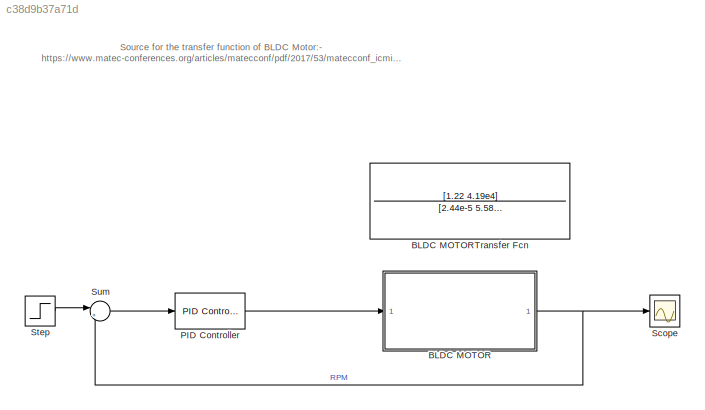
MODEL slx_c38d9b37a71d
KIND model
CONFIG AbsTol = auto
CONFIG EnableMultiTasking = off
CONFIG FixedStep = 0.1e-5
CONFIG MaxStep = auto
CONFIG MinStep = auto
CONFIG RelTol = 1e-3
CONFIG SampleTimeConstraint = Unconstrained
CONFIG SolverName = ode3
CONFIG StartTime = 0.0
CONFIG StopTime = 0.5
WORKSPACE source: mxarray member
WORKSPACE a = 41900
WORKSPACE b = -1.22
WORKSPACE c = 2.44e-05
WORKSPACE d = 0.000588
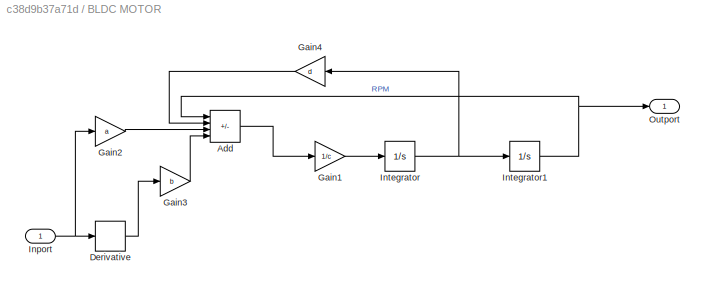
BLOCK [SubSystem] BLDC MOTOR
  Ports = [1, 1]
  RequestExecContextInheritance = off
BLOCK [Sum] BLDC MOTOR/Add
  IconShape = rectangular
  Inputs = --++
  Ports = [4, 1]
BLOCK [Derivative] BLDC MOTOR/Derivative
BLOCK [Gain] BLDC MOTOR/Gain1
  Gain = 1/c
BLOCK [Gain] BLDC MOTOR/Gain2
  Gain = a
BLOCK [Gain] BLDC MOTOR/Gain3
  Gain = b
BLOCK [Gain] BLDC MOTOR/Gain4
  Gain = d
  NameLocation = top
BLOCK [Inport] BLDC MOTOR/Inport
BLOCK [Integrator] BLDC MOTOR/Integrator
  Ports = [1, 1]
BLOCK [Integrator] BLDC MOTOR/Integrator1
  Ports = [1, 1]
BLOCK [Outport] BLDC MOTOR/Outport
BLOCK [TransferFcn] BLDC MOTORTransfer Fcn
  Commented = on
  Denominator = [2.44e-5 5.58e-4 1]
  Numerator = [1.22 4.19e4]
BLOCK [Reference] PID Controller  REF=pid_lib/PID Controller
  Ports = [1, 1]
  SourceBlock = pid_lib/PID Controller
  SourceProductBaseCode = SL
  SourceType = PID 1dof
BLOCK [Scope] Scope
  Floating = off
  NumInputPorts = 1
  Ports = [1]
  ScopeSpecificationString = Simulink.scopes.TimeScopeBlockCfg('CurrentConfiguration', extmgr.ConfigurationSet(extmgr.Configuration('Core','General UI',true),extmgr.Configuration('Core','Source UI',true),extmgr.Configuration('Sources','WiredSimulink',true),extmgr.Configuration('Visuals','Time Domain',true,'SerializedDisplays',{struct('MinYLimReal','-772.50388','MaxYLimReal','6952.53496','YLabelReal','','MinYLimMag',' 0.00000'...<+1393ch>
BLOCK [Step] Step
  After = 5000
  SampleTime = 0
  Time = 0
BLOCK [Sum] Sum
  Inputs = |+-
  Ports = [2, 1]
ANNOTATION (root): Source for the transfer function of BLDC Motor:- https://www.matec-conferences.org/articles/matecconf/pdf/2017/53/matecconf_icmite2017_00172.pdf
LINE BLDC MOTOR/Add:1 -> BLDC MOTOR/Gain1:1
LINE BLDC MOTOR/Derivative:1 -> BLDC MOTOR/Gain3:1
LINE BLDC MOTOR/Gain1:1 -> BLDC MOTOR/Integrator:1
LINE BLDC MOTOR/Gain2:1 -> BLDC MOTOR/Add:3
LINE BLDC MOTOR/Gain3:1 -> BLDC MOTOR/Add:4
LINE BLDC MOTOR/Gain4:1 -> BLDC MOTOR/Add:2
NET BLDC MOTOR/Inport:1 -> BLDC MOTOR/Derivative:1, BLDC MOTOR/Gain2:1
NET BLDC MOTOR/Integrator1:1 -> BLDC MOTOR/Add:1, BLDC MOTOR/Outport:1
NET BLDC MOTOR/Integrator:1 -> BLDC MOTOR/Gain4:1, BLDC MOTOR/Integrator1:1
NET BLDC MOTOR:1 -> Scope:1, Sum:2
LINE PID Controller:1 -> BLDC MOTOR:1
LINE Step:1 -> Sum:1
LINE Sum:1 -> PID Controller:1
note: NET lines group one-source signal fan-out (src -> all destinations, sorted); 1:1 wires keep LINE
